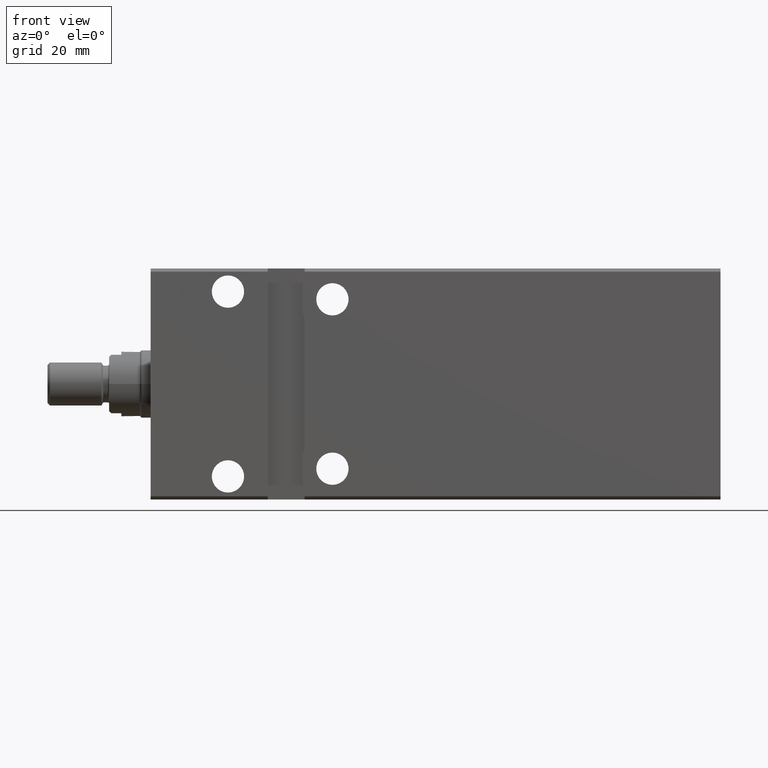
[diagram: clean part render]
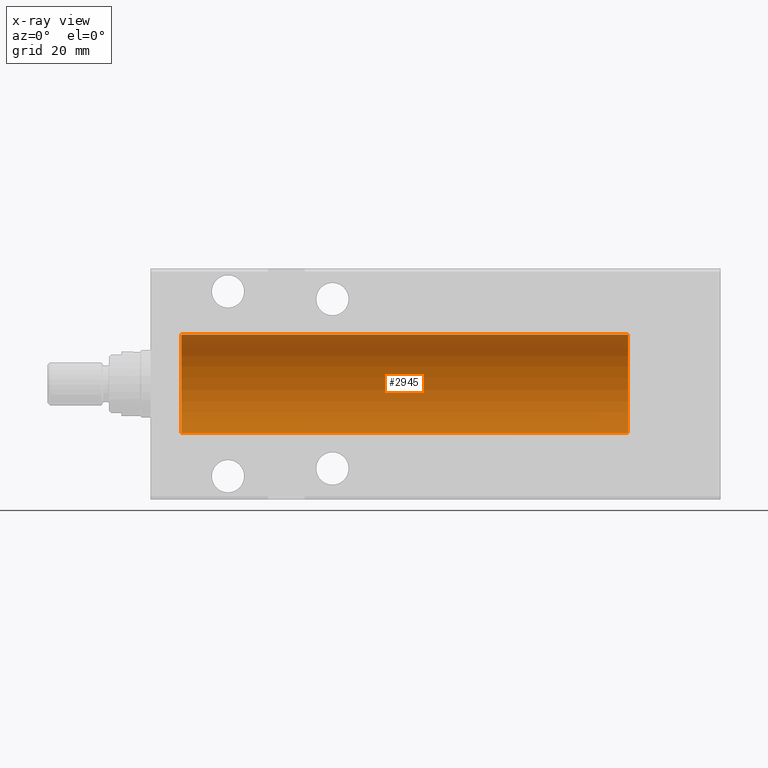
[diagram: x-ray — body ghosted, one internal face saturated and labeled with its STEP entity id]
A machine part, front view, then the same camera in x-ray: the body is ghosted and one INTERNAL B-rep face — a face not visible from any outside direction — is saturated and labeled: STEP entity #2945.
In plain terms, the highlighted cylindrical surface (partial cylindrical patch) has radius 16 mm, axis along (-1, -0, -0).
Its self-contained STEP definition (entity closure, byte-faithful):
#294 = EDGE_CURVE ( 'NONE', #11288, #14178, #21925, .T. ) ;
#1334 = VERTEX_POINT ( 'NONE', #4879 ) ;
#1577 = CARTESIAN_POINT ( 'NONE',  ( 19.17775111251208386, 1.219193417833760451, -15.95634149554536485 ) ) ;
#2254 = DIRECTION ( 'NONE',  ( 0.000000000000000000, 0.000000000000000000, 1.000000000000000000 ) ) ;
#2482 = CARTESIAN_POINT ( 'NONE',  ( 10.00000000000000000, 0.000000000000000000, 16.00000000000000000 ) ) ;
#2945 = ADVANCED_FACE ( 'NONE', ( #36210 ), #8105, .F. ) ;
#2990 = CARTESIAN_POINT ( 'NONE',  ( 26.71770615202116161, 1.508314300261687002, -15.93119902641381991 ) ) ;
#3021 = AXIS2_PLACEMENT_3D ( 'NONE', #17184, #20612, #28924 ) ;
#3349 = VERTEX_POINT ( 'NONE', #24855 ) ;
#3476 = EDGE_CURVE ( 'NONE', #6575, #23046, #14086, .T. ) ;
#4879 = CARTESIAN_POINT ( 'NONE',  ( 19.00000000000000000, 1.959437589885413797E-15, -16.00000000000000000 ) ) ;
#5020 = DIRECTION ( 'NONE',  ( -1.000000000000000000, -0.000000000000000000, -0.000000000000000000 ) ) ;
#5354 = DIRECTION ( 'NONE',  ( -1.000000000000000000, -0.000000000000000000, -0.000000000000000000 ) ) ;
#6575 = VERTEX_POINT ( 'NONE', #19391 ) ;
#8105 = CYLINDRICAL_SURFACE ( 'NONE', #36256, 16.00000000000000000 ) ;
#8697 = VERTEX_POINT ( 'NONE', #33696 ) ;
#8730 = CARTESIAN_POINT ( 'NONE',  ( 10.00000000000000000, 0.000000000000000000, 0.000000000000000000 ) ) ;
#8767 = B_SPLINE_CURVE_WITH_KNOTS ( 'NONE', 3,
 ( #24642, #2990, #28053, #8846, #30285, #34122 ),
 .UNSPECIFIED., .F., .F.,
 ( 4, 2, 4 ),
 ( 0.000000000000000000, 0.0009228726212815549935, 0.001845745242563109553 ),
 .UNSPECIFIED. ) ;
#8846 = CARTESIAN_POINT ( 'NONE',  ( 26.96356619788477360, 0.6204082509210441243, -15.99078302721733102 ) ) ;
#9020 = ORIENTED_EDGE ( 'NONE', *, *, #17232, .F. ) ;
#9311 = ORIENTED_EDGE ( 'NONE', *, *, #24477, .F. ) ;
#10122 = VECTOR ( 'NONE', #5020, 1000.000000000000000 ) ;
#11288 = VERTEX_POINT ( 'NONE', #2482 ) ;
#11954 = EDGE_CURVE ( 'NONE', #8697, #11288, #21334, .T. ) ;
#12189 = DIRECTION ( 'NONE',  ( 0.000000000000000000, 0.000000000000000000, 1.000000000000000000 ) ) ;
#13873 = CARTESIAN_POINT ( 'NONE',  ( 27.00000000000000000, 1.959432167375458166E-15, -16.00000000000000000 ) ) ;
#14086 = LINE ( 'NONE', #39150, #28502 ) ;
#14178 = VERTEX_POINT ( 'NONE', #36369 ) ;
#14285 = CARTESIAN_POINT ( 'NONE',  ( 19.03558494715525029, 0.6159808737045033844, -15.99099227927342959 ) ) ;
#16752 = LINE ( 'NONE', #29090, #10122 ) ;
#17184 = CARTESIAN_POINT ( 'NONE',  ( 155.0000000000000000, 0.000000000000000000, 0.000000000000000000 ) ) ;
#17232 = EDGE_CURVE ( 'NONE', #8697, #6575, #20428, .T. ) ;
#17457 = ORIENTED_EDGE ( 'NONE', *, *, #3476, .F. ) ;
#19391 = CARTESIAN_POINT ( 'NONE',  ( 155.0000000000000000, 1.959434878635765131E-15, -16.00000000000000000 ) ) ;
#19758 = CARTESIAN_POINT ( 'NONE',  ( 19.00000000000000000, 1.959437589885413797E-15, -16.00000000000000000 ) ) ;
#20050 = CARTESIAN_POINT ( 'NONE',  ( 155.0000000000000000, 0.000000000000000000, 0.000000000000000000 ) ) ;
#20338 = DIRECTION ( 'NONE',  ( -1.000000000000000000, -0.000000000000000000, -0.000000000000000000 ) ) ;
#20428 = CIRCLE ( 'NONE', #3021, 16.00000000000000000 ) ;
#20546 = CARTESIAN_POINT ( 'NONE',  ( 19.00000000000000000, 0.3073137169939992308, -16.00000000000000355 ) ) ;
#20612 = DIRECTION ( 'NONE',  ( -1.000000000000000000, 0.000000000000000000, 0.000000000000000000 ) ) ;
#20993 = DIRECTION ( 'NONE',  ( -1.000000000000000000, -0.000000000000000000, -0.000000000000000000 ) ) ;
#21295 = VERTEX_POINT ( 'NONE', #24814 ) ;
#21334 = LINE ( 'NONE', #30425, #35223 ) ;
#21925 = CIRCLE ( 'NONE', #32876, 16.00000000000000000 ) ;
#22823 = EDGE_CURVE ( 'NONE', #3349, #23046, #8767, .T. ) ;
#23046 = VERTEX_POINT ( 'NONE', #13873 ) ;
#24477 = EDGE_CURVE ( 'NONE', #1334, #14178, #30090, .T. ) ;
#24642 = CARTESIAN_POINT ( 'NONE',  ( 26.57910603363460922, 1.786057109949259036, -15.89999999999998970 ) ) ;
#24814 = CARTESIAN_POINT ( 'NONE',  ( 19.42089396636538723, 1.786057109949259036, -15.89999999999998970 ) ) ;
#24855 = CARTESIAN_POINT ( 'NONE',  ( 26.57910603363460922, 1.786057109949259036, -15.89999999999998970 ) ) ;
#27413 = ORIENTED_EDGE ( 'NONE', *, *, #294, .T. ) ;
#27901 = EDGE_CURVE ( 'NONE', #3349, #21295, #16752, .T. ) ;
#28053 = CARTESIAN_POINT ( 'NONE',  ( 26.82196254941095148, 1.219576022118253888, -15.95627408098855504 ) ) ;
#28502 = VECTOR ( 'NONE', #20338, 1000.000000000000000 ) ;
#28924 = DIRECTION ( 'NONE',  ( 0.000000000000000000, 0.000000000000000000, 1.000000000000000000 ) ) ;
#29090 = CARTESIAN_POINT ( 'NONE',  ( 155.0000000000000000, 1.786057109949259036, -15.89999999999998970 ) ) ;
#29462 = CARTESIAN_POINT ( 'NONE',  ( 19.28245879915401417, 1.508644848340497058, -15.93116189573794550 ) ) ;
#29658 = CARTESIAN_POINT ( 'NONE',  ( 19.42089396636538723, 1.786057109949259036, -15.89999999999998970 ) ) ;
#30090 = LINE ( 'NONE', #39405, #37090 ) ;
#30285 = CARTESIAN_POINT ( 'NONE',  ( 26.99999999999999645, 0.3077040434552391068, -16.00000000000000355 ) ) ;
#30425 = CARTESIAN_POINT ( 'NONE',  ( 155.0000000000000000, 0.000000000000000000, 16.00000000000000000 ) ) ;
#30736 = EDGE_CURVE ( 'NONE', #1334, #21295, #34249, .T. ) ;
#32529 = ORIENTED_EDGE ( 'NONE', *, *, #22823, .T. ) ;
#32876 = AXIS2_PLACEMENT_3D ( 'NONE', #8730, #33413, #12189 ) ;
#33413 = DIRECTION ( 'NONE',  ( -1.000000000000000000, 0.000000000000000000, 0.000000000000000000 ) ) ;
#33696 = CARTESIAN_POINT ( 'NONE',  ( 155.0000000000000000, 0.000000000000000000, 16.00000000000000000 ) ) ;
#34045 = EDGE_LOOP ( 'NONE', ( #17457, #9020, #39592, #27413, #9311, #36558, #35311, #32529 ) ) ;
#34122 = CARTESIAN_POINT ( 'NONE',  ( 27.00000000000000000, 1.959432167375458166E-15, -16.00000000000000000 ) ) ;
#34249 = B_SPLINE_CURVE_WITH_KNOTS ( 'NONE', 3,
 ( #19758, #20546, #14285, #1577, #29462, #29658 ),
 .UNSPECIFIED., .F., .F.,
 ( 4, 2, 4 ),
 ( 0.001845745242563113023, 0.002767447188281244030, 0.003689149133999374171 ),
 .UNSPECIFIED. ) ;
#35223 = VECTOR ( 'NONE', #5354, 1000.000000000000000 ) ;
#35311 = ORIENTED_EDGE ( 'NONE', *, *, #27901, .F. ) ;
#36210 = FACE_OUTER_BOUND ( 'NONE', #34045, .T. ) ;
#36256 = AXIS2_PLACEMENT_3D ( 'NONE', #20050, #38651, #2254 ) ;
#36369 = CARTESIAN_POINT ( 'NONE',  ( 10.00000000000000000, 1.959434878635765131E-15, -16.00000000000000000 ) ) ;
#36558 = ORIENTED_EDGE ( 'NONE', *, *, #30736, .T. ) ;
#37090 = VECTOR ( 'NONE', #20993, 1000.000000000000000 ) ;
#38651 = DIRECTION ( 'NONE',  ( -1.000000000000000000, -0.000000000000000000, -0.000000000000000000 ) ) ;
#39150 = CARTESIAN_POINT ( 'NONE',  ( 155.0000000000000000, 1.959434878635765131E-15, -16.00000000000000000 ) ) ;
#39405 = CARTESIAN_POINT ( 'NONE',  ( 155.0000000000000000, 1.959434878635765131E-15, -16.00000000000000000 ) ) ;
#39592 = ORIENTED_EDGE ( 'NONE', *, *, #11954, .T. ) ;